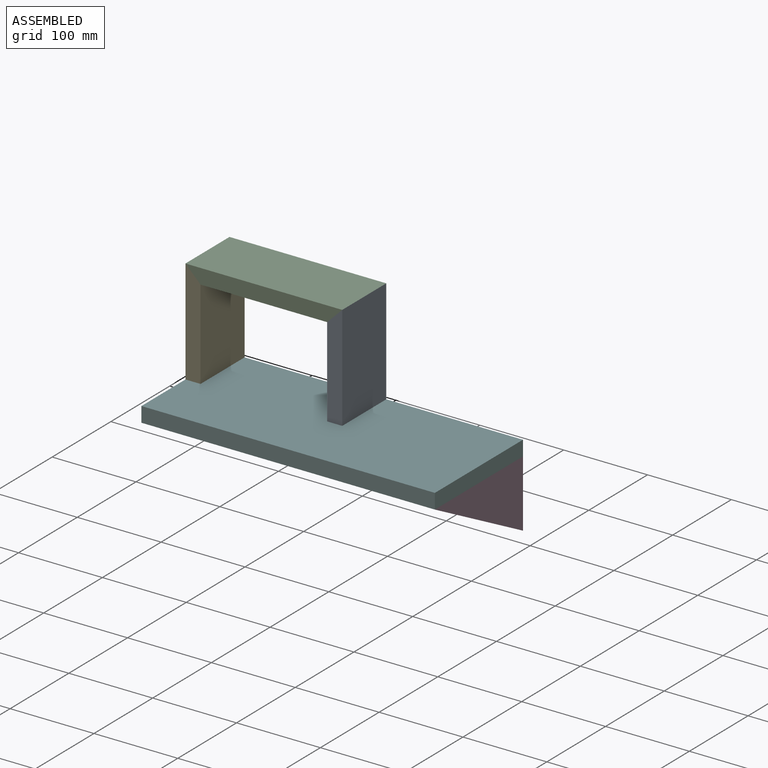
[diagram: assembled view]
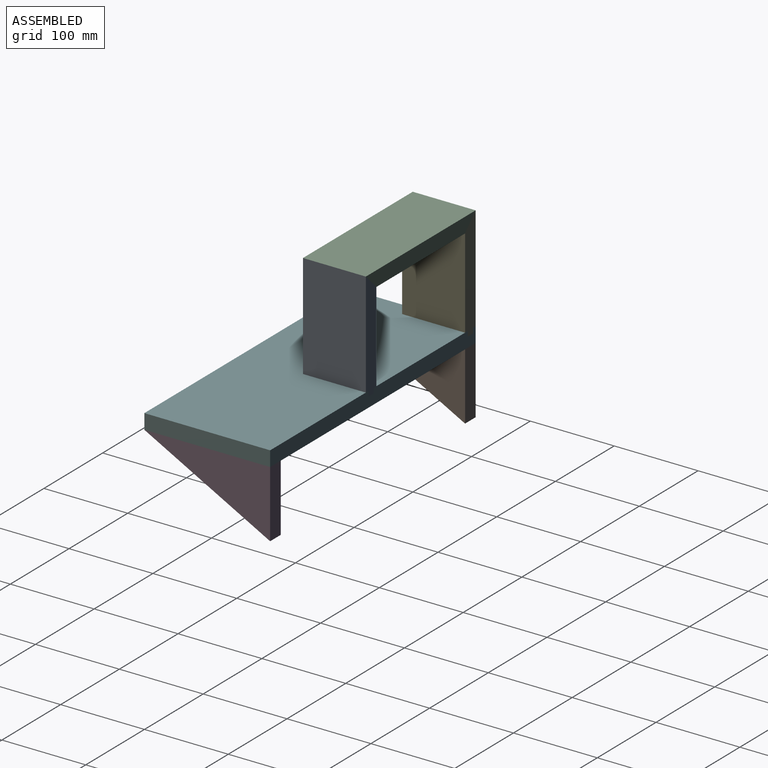
[diagram: assembled view, second angle]
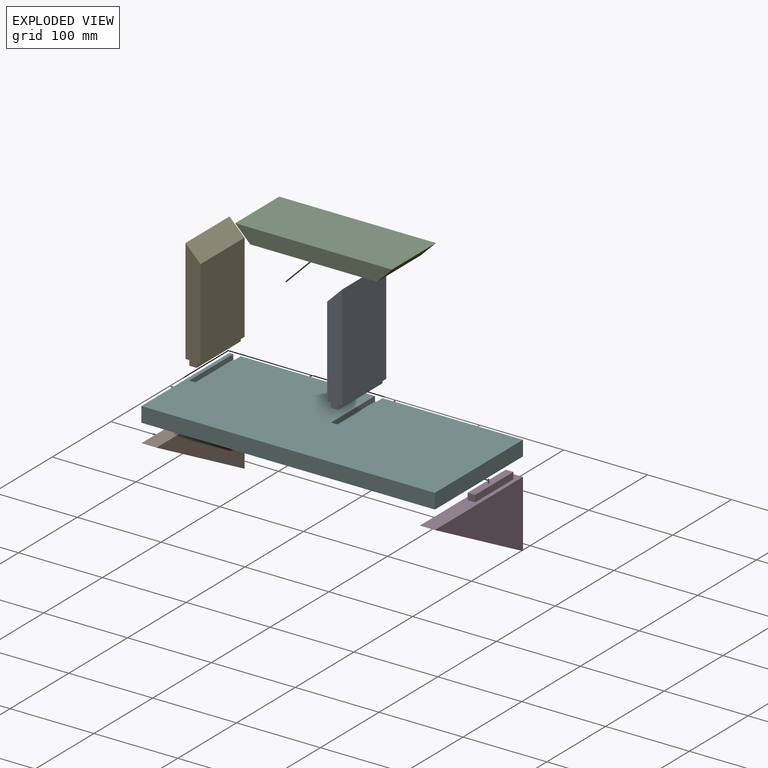
[diagram: exploded view]
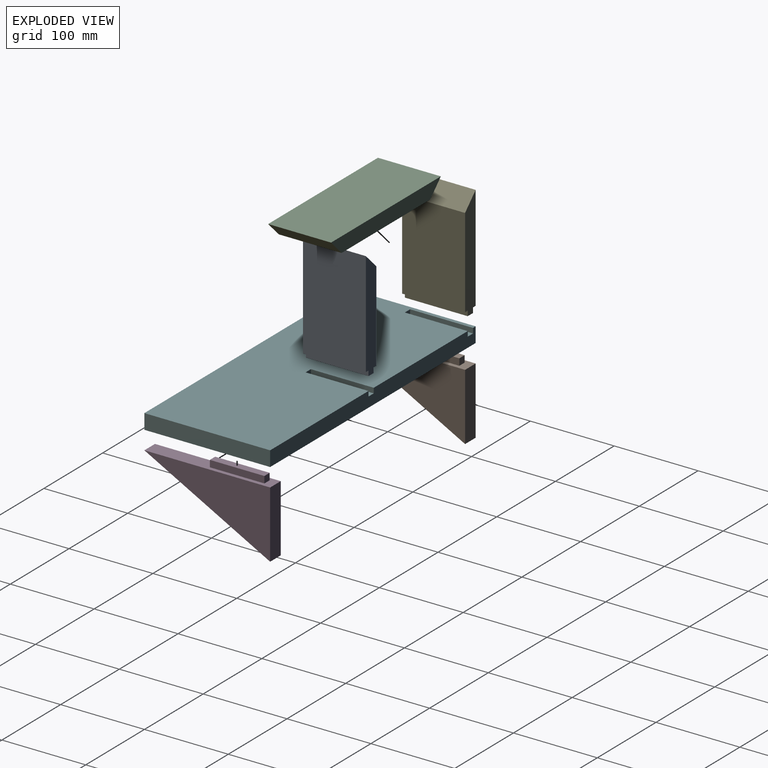
[diagram: exploded view, second angle]
ASSEMBLY  parts=6 mates=5
PART A: 10 faces, bbox 18x75x131 mm
  f0: plane 131x18mm, normal (0,-1,0), area 2142mm2, adj f1,f3,f4,f5,f6,f7,f8,f9
  f1: plane 75x4.5mm, normal (0,0,1), area 337.5mm2, adj f0,f2,f4,f7
  f2: plane 131x18mm, normal (0,1,0), area 2142mm2, adj f1,f3,f4,f5,f6,f7,f8,f9
  f3: plane 107x75mm, normal (-1,0,0), area 8025mm2, adj f0,f2,f5,f9
  f4: plane 125x75mm, normal (1,0,0), area 9375mm2, adj f0,f1,f2,f9
  f5: plane 75x4.5mm, normal (0,0,1), area 337.5mm2, adj f0,f2,f3,f6
  f6: plane 75x6mm, normal (-1,0,0), area 450mm2, adj f0,f2,f5,f8
  f7: plane 75x6mm, normal (1,0,0), area 450mm2, adj f0,f1,f2,f8
  f8: plane 75x9mm, normal (0,0,1), area 675mm2, adj f0,f2,f6,f7
  f9: plane 75x18mm, normal (-0.71,0,-0.71), area 1909.2mm2, adj f0,f2,f3,f4
PART B: 10 faces, bbox 18x150x88 mm
  f0: plane 80x18mm, normal (0,1,0), area 1440mm2, adj f1,f2,f3,f4
  f1: plane 150x18mm, normal (0,0,1), area 2115mm2, adj f0,f2,f3,f4,f5,f6,f7,f8
  f2: plane 150x80mm, normal (0,-0.47,-0.88), area 3060mm2, adj f0,f1,f3,f4
  f3: plane 150x80mm, normal (1,0,0), area 6000mm2, adj f0,f1,f2
  f4: plane 150x80mm, normal (-1,0,0), area 6000mm2, adj f0,f1,f2
  f5: plane 9x8mm, normal (0,1,0), area 72mm2, adj f1,f6,f8,f9
  f6: plane 65x8mm, normal (-1,0,0), area 520mm2, adj f1,f5,f7,f9
  f7: plane 9x8mm, normal (0,-1,0), area 72mm2, adj f1,f6,f8,f9
  f8: plane 65x8mm, normal (1,0,0), area 520mm2, adj f1,f5,f7,f9
  f9: plane 65x9mm, normal (0,0,1), area 585mm2, adj f5,f6,f7,f8
PART C: 6 faces, bbox 187x75x18 mm
  f0: plane 187x18mm, normal (0,-1,0), area 3042mm2, adj f1,f3,f4,f5
  f1: plane 151x75mm, normal (0,0,1), area 11325mm2, adj f0,f2,f4,f5
  f2: plane 187x18mm, normal (0,1,0), area 3042mm2, adj f1,f3,f4,f5
  f3: plane 187x75mm, normal (0,0,-1), area 14025mm2, adj f0,f2,f4,f5
  f4: plane 75x18mm, normal (0.71,0,0.71), area 1909.2mm2, adj f0,f1,f2,f3
  f5: plane 75x18mm, normal (-0.71,0,0.71), area 1909.2mm2, adj f0,f1,f2,f3
PART D: same geometry as B
PART E: same geometry as A
PART F: 24 faces, bbox 350x150x18 mm
  f0: plane 350x150mm, normal (0,0,-1), area 51330mm2, adj f2,f3,f4,f5,f6,f7,f8,f9
  f1: plane 350x150mm, normal (0,0,1), area 51150mm2, adj f2,f3,f4,f5,f16,f17,f18,f20
  f2: plane 150x18mm, normal (-1,0,0), area 2700mm2, adj f0,f1,f4,f5
  f3: plane 150x18mm, normal (1,0,0), area 2700mm2, adj f0,f1,f4,f5
  f4: plane 350x18mm, normal (0,-1,0), area 6300mm2, adj f0,f1,f2,f3
  f5: plane 350x18mm, normal (0,1,0), area 6192mm2, adj f0,f1,f2,f3,f16,f18,f19,f20
  f6: plane 9x8mm, normal (0,1,0), area 72mm2, adj f0,f7,f9,f10
  f7: plane 65x8mm, normal (1,0,0), area 520mm2, adj f0,f6,f8,f10
  f8: plane 9x8mm, normal (0,-1,0), area 72mm2, adj f0,f7,f9,f10
  f9: plane 65x8mm, normal (-1,0,0), area 520mm2, adj f0,f6,f8,f10
  f10: plane 65x9mm, normal (0,0,-1), area 585mm2, adj f6,f7,f8,f9
  f11: plane 9x8mm, normal (0,-1,0), area 72mm2, adj f0,f12,f14,f15
  f12: plane 65x8mm, normal (-1,0,0), area 520mm2, adj f0,f11,f13,f15
  f13: plane 9x8mm, normal (0,1,0), area 72mm2, adj f0,f12,f14,f15
  f14: plane 65x8mm, normal (1,0,0), area 520mm2, adj f0,f11,f13,f15
  f15: plane 65x9mm, normal (0,0,-1), area 585mm2, adj f11,f12,f13,f14
  f16: plane 75x6mm, normal (1,0,0), area 450mm2, adj f1,f5,f17,f19
  f17: plane 9x6mm, normal (0,1,0), area 54mm2, adj f1,f16,f18,f19
  f18: plane 75x6mm, normal (-1,0,0), area 450mm2, adj f1,f5,f17,f19
  f19: plane 75x9mm, normal (0,0,1), area 675mm2, adj f5,f16,f17,f18
  f20: plane 75x6mm, normal (1,0,0), area 450mm2, adj f1,f5,f21,f23
  f21: plane 9x6mm, normal (0,1,0), area 54mm2, adj f1,f20,f22,f23
  f22: plane 75x6mm, normal (-1,0,0), area 450mm2, adj f1,f5,f21,f23
  f23: plane 75x9mm, normal (0,0,1), area 675mm2, adj f5,f20,f21,f22
PLACE A rot(axis=(1,0,0),180deg) t=(-101.47,1.54,108.76)mm
PLACE B t=(-339.5,-87.73,-74.24)mm
PLACE C rot(axis=(0,1,0),180deg) t=(-263.05,-51.79,108.76)mm
PLACE D t=(-7.5,-87.73,-74.24)mm
PLACE E rot(axis=(0,1,0),180deg) t=(-390.53,-102.01,108.76)mm
PLACE F t=(-66.02,-12.73,33.87)mm
MATE fastened C.f4 <-> E.f9  axis (-0.71,0,-0.71) through (-330.5,-50.23,99.76)mm
MATE fastened A.f8 <-> F.f19  axis (0,0,-1) through (-161.5,-50.23,-22.24)mm
MATE fastened E.f8 <-> F.f23  axis (0,0,-1) through (-330.5,-50.23,-22.24)mm
MATE fastened B.f9 <-> F.f10  axis (0,0,1) through (-330.5,-55.23,-26.24)mm
MATE fastened D.f9 <-> F.f15  axis (0,0,1) through (1.5,-55.23,-26.24)mm
